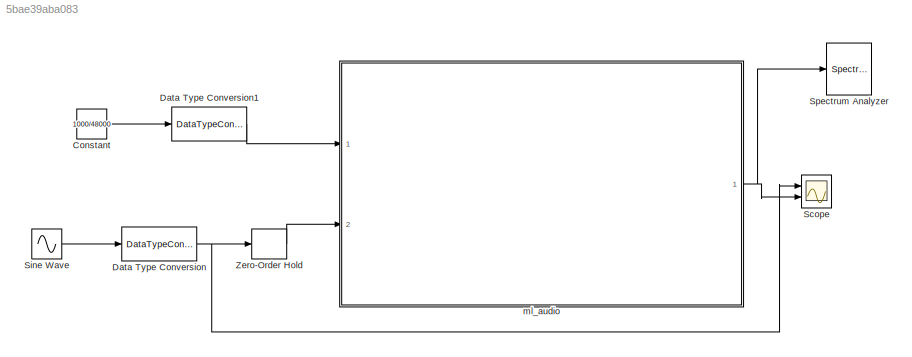
MODEL slx_5bae39aba083
KIND model
CONFIG AbsTol = auto
CONFIG EnableMultiTasking = off
CONFIG FixedStep = auto
CONFIG MaxStep = auto
CONFIG MinStep = auto
CONFIG RelTol = 1e-3
CONFIG SampleTimeConstraint = Unconstrained
CONFIG Solver = FixedStepAuto
CONFIG SolverName = FixedStepAuto
CONFIG StartTime = 0.0
CONFIG StopTime = 0.2
BLOCK [Constant] Constant
  SampleTime = 1/48000
  Value = 1000/48000
BLOCK [DataTypeConversion] Data Type Conversion
  RndMeth = Floor
  SaturateOnIntegerOverflow = off
BLOCK [DataTypeConversion] Data Type Conversion1
  RndMeth = Floor
BLOCK [Scope] Scope
  Floating = off
  NumInputPorts = 2
  Ports = [2]
  ScopeSpecificationString = Simulink.scopes.TimeScopeBlockCfg('CurrentConfiguration', extmgr.ConfigurationSet(extmgr.Configuration('Core','General UI',true),extmgr.Configuration('Core','Source UI',true),extmgr.Configuration('Sources','WiredSimulink',true,'DataLoggingSaveFormat','Array','DataLoggingLimitDataPoints',true,'DataLoggingDecimation','1'),extmgr.Configuration('Visuals','Time Domain',true,'SerializedDisplays',{struct...<+1716ch>
BLOCK [Sin] Sine Wave
  Amplitude = 0.1
  Frequency = 2*3.14*30
  Ports = [0, 1]
  SampleTime = 0
BLOCK [SpectrumAnalyzer] Spectrum Analyzer
  Ports = [1]
  ScopeSpecificationString = spbscopes.SpectrumAnalyzerBlockCfg('CurrentConfiguration', extmgr.ConfigurationSet(extmgr.Configuration('Core','General UI',true),extmgr.Configuration('Core','Source UI',true),extmgr.Configuration('Sources','WiredSimulink',true),extmgr.Configuration('Visuals','Spectrum',true,'AxesProperties',struct('Color',{[0 0 0],[0 0 0]},'XColor',{[0.686274509803922 0.686274509803922 0.686274509803922],[0.68627...<+1928ch>
BLOCK [ZeroOrderHold] Zero-Order Hold
  SampleTime = 1/48000
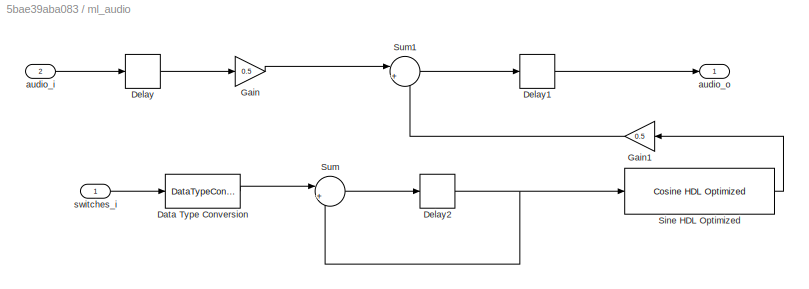
BLOCK [SubSystem] ml_audio
  Ports = [2, 1]
  RequestExecContextInheritance = off
BLOCK [DataTypeConversion] ml_audio/Data Type Conversion
  OutDataTypeStr = fixdt(0,16,16)
  RndMeth = Floor
  SaturateOnIntegerOverflow = off
BLOCK [Delay] ml_audio/Delay
  DelayLength = 1
  InitialCondition = 0
  InputPortMap = u0
  Ports = [1, 1]
BLOCK [Delay] ml_audio/Delay1
  DelayLength = 1
  InitialCondition = 0
  InputPortMap = u0
  Ports = [1, 1]
BLOCK [Delay] ml_audio/Delay2
  DelayLength = 1
  InitialCondition = 0
  InputPortMap = u0
  Ports = [1, 1]
BLOCK [Gain] ml_audio/Gain
  Gain = 0.5
  ParamDataTypeStr = Inherit: Inherit via internal rule
  SaturateOnIntegerOverflow = off
BLOCK [Gain] ml_audio/Gain1
  Gain = 0.5
  OutDataTypeStr = fixdt(1,16,15)
  ParamDataTypeStr = Inherit: Inherit via internal rule
  SaturateOnIntegerOverflow = off
BLOCK [Reference] ml_audio/Sine HDL Optimized  REF=hdlsllib/Lookup
Tables/Cosine
HDL Optimized
  Ports = [1, 1]
  SourceBlock = hdlsllib/Lookup\nTables/Cosine\nHDL Optimized
  SourceProductBaseCode = HD
  SourceProductName = HDL Coder
  SourceType = Sine and Cosine HDL optimized block
BLOCK [Sum] ml_audio/Sum
  AccumDataTypeStr = fixdt(0,16,16)
  IconShape = round
  InputSameDT = off
  Inputs = |++
  OutDataTypeStr = Inherit: Inherit via internal rule
  Ports = [2, 1]
  SaturateOnIntegerOverflow = off
BLOCK [Sum] ml_audio/Sum1
  AccumDataTypeStr = Inherit: Same as first input
  IconShape = round
  InputSameDT = off
  Inputs = |++
  OutDataTypeStr = Inherit: Inherit via internal rule
  Ports = [2, 1]
  SaturateOnIntegerOverflow = off
BLOCK [Inport] ml_audio/audio_i
  IconDisplay = Port number
  OutDataTypeStr = fixdt(1,16,15)
  Port = 2
BLOCK [Outport] ml_audio/audio_o
  IconDisplay = Port number
  OutDataTypeStr = fixdt(1,16,15)
BLOCK [Inport] ml_audio/switches_i
  IconDisplay = Port number
  OutDataTypeStr = fixdt(0,10,10)
LINE Constant:1 -> Data Type Conversion1:1
LINE Data Type Conversion1:1 -> ml_audio:1
NET Data Type Conversion:1 -> Scope:1, Zero-Order Hold:1
LINE Sine Wave:1 -> Data Type Conversion:1
LINE Zero-Order Hold:1 -> ml_audio:2
LINE ml_audio/Data Type Conversion:1 -> ml_audio/Sum:1
LINE ml_audio/Delay1:1 -> ml_audio/audio_o:1
NET ml_audio/Delay2:1 -> ml_audio/Sine HDL Optimized:1, ml_audio/Sum:2
LINE ml_audio/Delay:1 -> ml_audio/Gain:1
LINE ml_audio/Gain1:1 -> ml_audio/Sum1:2
LINE ml_audio/Gain:1 -> ml_audio/Sum1:1
LINE ml_audio/Sine HDL Optimized:1 -> ml_audio/Gain1:1
LINE ml_audio/Sum1:1 -> ml_audio/Delay1:1
LINE ml_audio/Sum:1 -> ml_audio/Delay2:1
LINE ml_audio/audio_i:1 -> ml_audio/Delay:1
LINE ml_audio/switches_i:1 -> ml_audio/Data Type Conversion:1
NET ml_audio:1 -> Scope:2, Spectrum Analyzer:1
note: NET lines group one-source signal fan-out (src -> all destinations, sorted); 1:1 wires keep LINE
